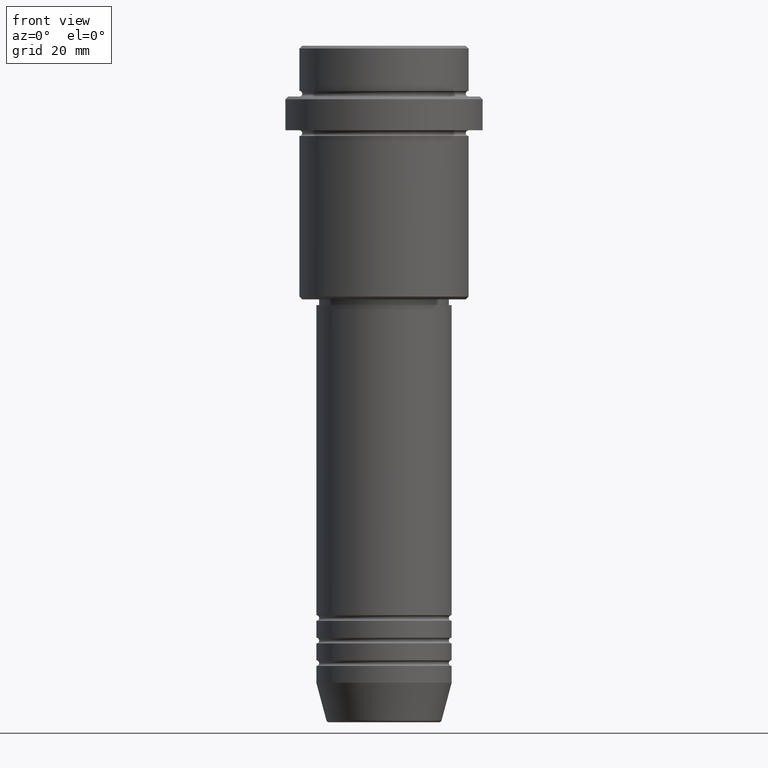
[diagram: clean part render]
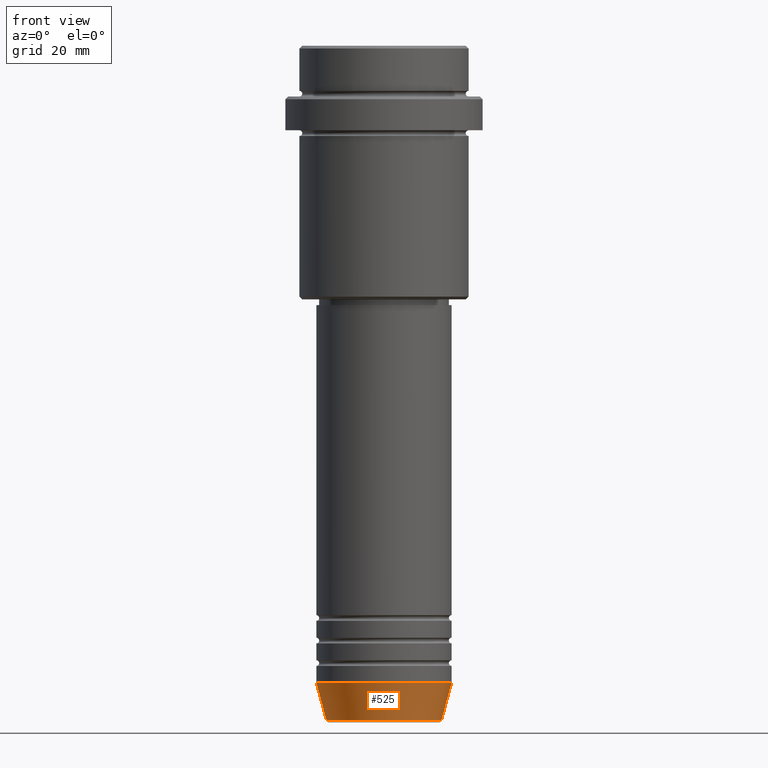
[diagram: same view with one face highlighted and labeled with its STEP entity id]
A machine part, front view. The second image highlights one B-rep face of the part: STEP entity #525.
In plain terms, the highlighted conical surface has half-angle 15 deg.
Its self-contained STEP definition (entity closure, byte-faithful):
#36 = CIRCLE ( 'NONE', #1130, 10.22365507213718949 ) ;
#58 = EDGE_CURVE ( 'NONE', #465, #1373, #1355, .T. ) ;
#72 = VECTOR ( 'NONE', #1371, 1000.000000000000000 ) ;
#126 = ORIENTED_EDGE ( 'NONE', *, *, #234, .T. ) ;
#154 = CARTESIAN_POINT ( 'NONE',  ( 12.00000000000000000, 0.000000000000000000, -112.9999999999999858 ) ) ;
#160 = CARTESIAN_POINT ( 'NONE',  ( 0.000000000000000000, 0.000000000000000000, -112.9999999999999858 ) ) ;
#165 = DIRECTION ( 'NONE',  ( -0.000000000000000000, -0.000000000000000000, 1.000000000000000000 ) ) ;
#186 = CONICAL_SURFACE ( 'NONE', #1194, 12.00000000000000000, 0.2617993877991500740 ) ;
#234 = EDGE_CURVE ( 'NONE', #867, #543, #1183, .T. ) ;
#255 = CIRCLE ( 'NONE', #1266, 12.00000000000000000 ) ;
#364 = CARTESIAN_POINT ( 'NONE',  ( 0.000000000000000000, 0.000000000000000000, -112.9999999999999858 ) ) ;
#383 = DIRECTION ( 'NONE',  ( -0.000000000000000000, -0.000000000000000000, 1.000000000000000000 ) ) ;
#450 = CARTESIAN_POINT ( 'NONE',  ( -10.22365507213718949, 1.360806402472382547E-15, -119.6294095225512564 ) ) ;
#458 = ORIENTED_EDGE ( 'NONE', *, *, #58, .F. ) ;
#465 = VERTEX_POINT ( 'NONE', #450 ) ;
#509 = VECTOR ( 'NONE', #1283, 1000.000000000000000 ) ;
#525 = ADVANCED_FACE ( 'NONE', ( #900 ), #186, .T. ) ;
#543 = VERTEX_POINT ( 'NONE', #154 ) ;
#565 = EDGE_CURVE ( 'NONE', #465, #867, #36, .T. ) ;
#581 = EDGE_CURVE ( 'NONE', #1373, #543, #255, .T. ) ;
#589 = DIRECTION ( 'NONE',  ( 1.000000000000000000, 0.000000000000000000, 0.000000000000000000 ) ) ;
#606 = DIRECTION ( 'NONE',  ( -0.000000000000000000, -0.000000000000000000, 1.000000000000000000 ) ) ;
#619 = CARTESIAN_POINT ( 'NONE',  ( 12.00000000000000000, 0.000000000000000000, -112.9999999999999858 ) ) ;
#777 = CARTESIAN_POINT ( 'NONE',  ( 10.22365507213718949, 0.000000000000000000, -119.6294095225512564 ) ) ;
#867 = VERTEX_POINT ( 'NONE', #777 ) ;
#900 = FACE_OUTER_BOUND ( 'NONE', #1055, .T. ) ;
#915 = CARTESIAN_POINT ( 'NONE',  ( 0.000000000000000000, 0.000000000000000000, -119.6294095225512564 ) ) ;
#954 = CARTESIAN_POINT ( 'NONE',  ( -12.00000000000000000, 1.469576158976823947E-15, -112.9999999999999858 ) ) ;
#1030 = DIRECTION ( 'NONE',  ( 1.000000000000000000, 0.000000000000000000, 0.000000000000000000 ) ) ;
#1053 = CARTESIAN_POINT ( 'NONE',  ( -12.00000000000000000, 1.469576158976823947E-15, -112.9999999999999858 ) ) ;
#1055 = EDGE_LOOP ( 'NONE', ( #458, #1335, #126, #1401 ) ) ;
#1130 = AXIS2_PLACEMENT_3D ( 'NONE', #915, #383, #1030 ) ;
#1183 = LINE ( 'NONE', #619, #509 ) ;
#1194 = AXIS2_PLACEMENT_3D ( 'NONE', #364, #606, #589 ) ;
#1266 = AXIS2_PLACEMENT_3D ( 'NONE', #160, #165, #1375 ) ;
#1283 = DIRECTION ( 'NONE',  ( 0.2588190451025213501, 0.000000000000000000, 0.9659258262890680902 ) ) ;
#1335 = ORIENTED_EDGE ( 'NONE', *, *, #565, .T. ) ;
#1355 = LINE ( 'NONE', #1053, #72 ) ;
#1371 = DIRECTION ( 'NONE',  ( -0.2588190451025213501, 3.169619151431772337E-17, 0.9659258262890680902 ) ) ;
#1373 = VERTEX_POINT ( 'NONE', #954 ) ;
#1375 = DIRECTION ( 'NONE',  ( 1.000000000000000000, 0.000000000000000000, 0.000000000000000000 ) ) ;
#1401 = ORIENTED_EDGE ( 'NONE', *, *, #581, .F. ) ;